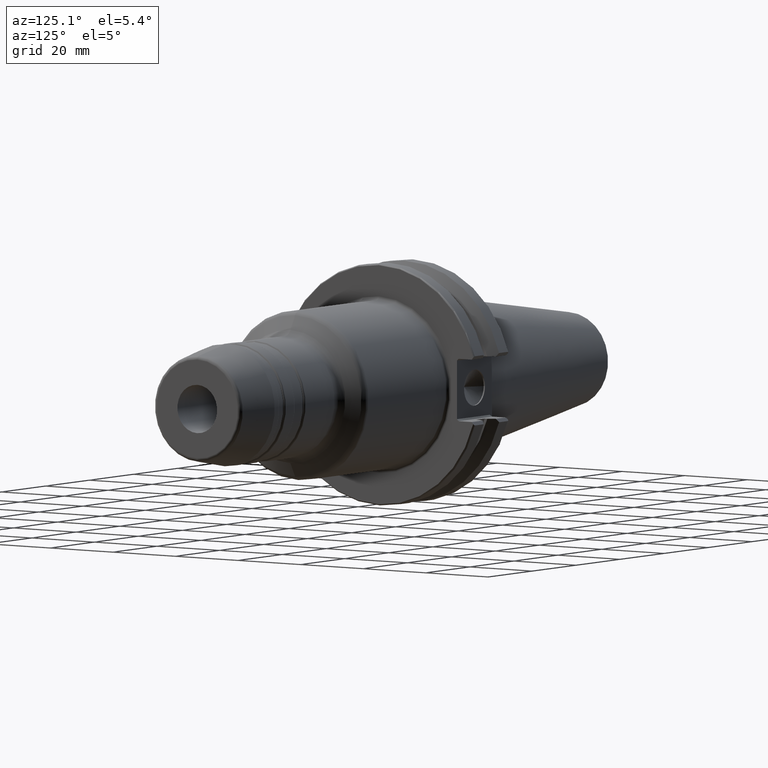
[diagram: clean part render]
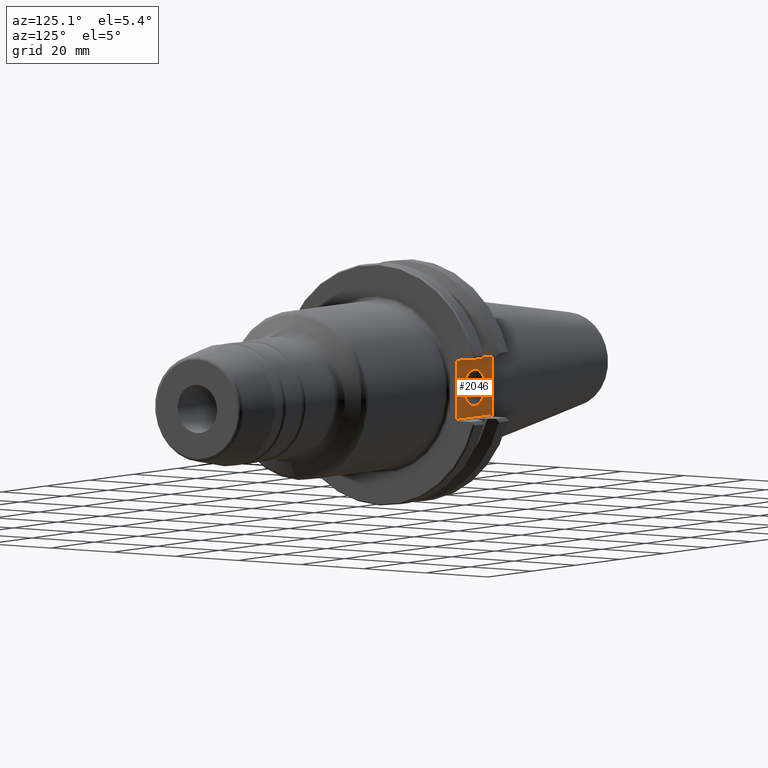
[diagram: same view with one face highlighted and labeled with its STEP entity id]
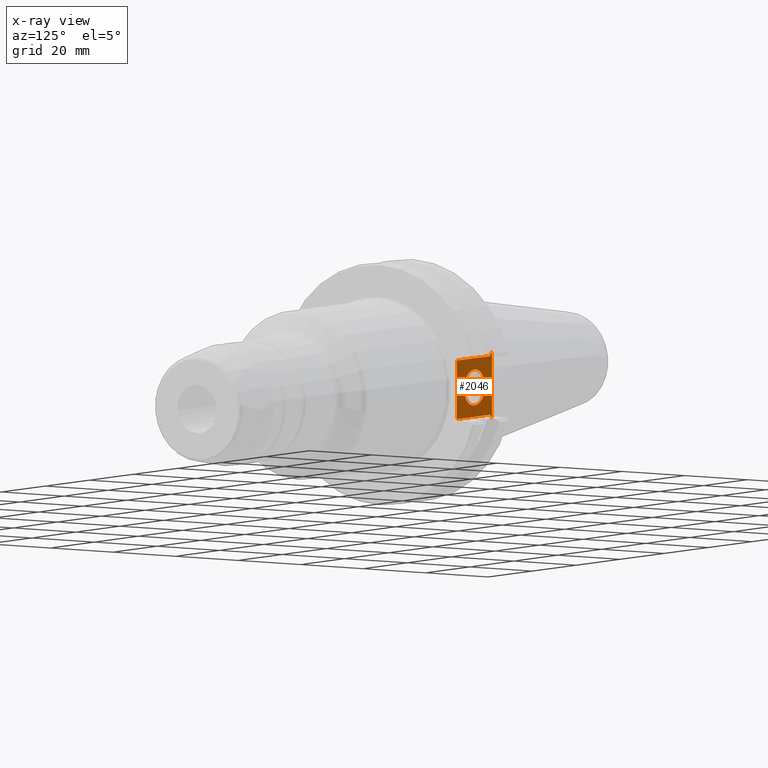
[diagram: x-ray of the same camera — body ghosted, the highlighted face saturated]
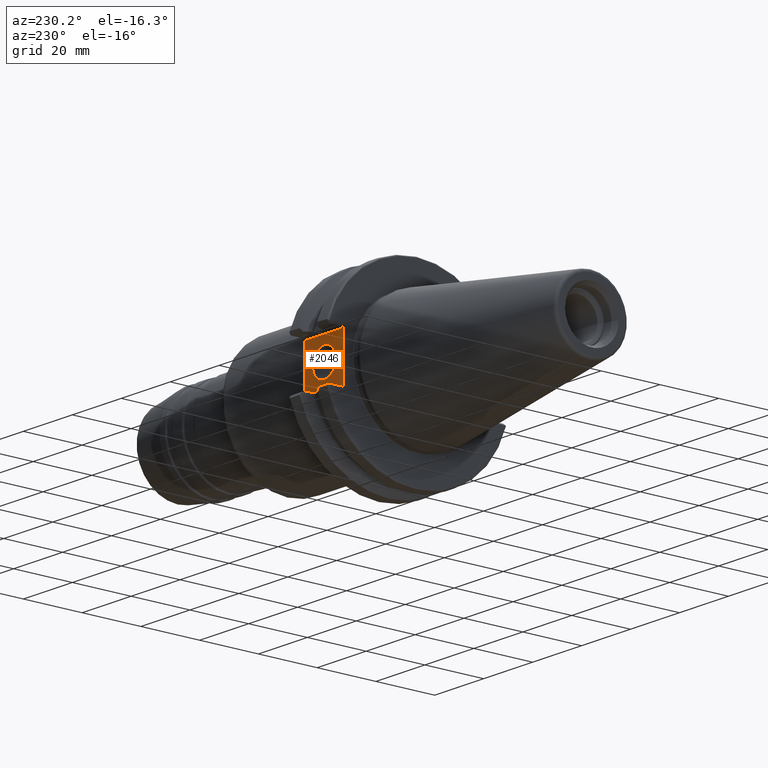
[diagram: same view with one face highlighted and labeled with its STEP entity id]
A machine part, auxiliary view. The second image highlights one B-rep face of the part: STEP entity #2046.
The next image is the same camera in x-ray: the body ghosted, the highlighted face saturated — about 0% of this face is hidden behind the body in this view.
A second angle (auxiliary view) of the same face is appended — the face is thin or edge-on in the first view.
In plain terms, the highlighted planar face has unit normal (0, 1, 0).
Its self-contained STEP definition (entity closure, byte-faithful):
#142=DIRECTION('',(7.071067811865E-1,0.E0,-7.071067811865E-1));
#143=VECTOR('',#142,1.414213562373E0);
#144=CARTESIAN_POINT('',(3.175E0,2.5E1,8.69E0));
#145=LINE('',#144,#143);
#150=CARTESIAN_POINT('',(1.11E1,2.5E1,0.E0));
#151=DIRECTION('',(0.E0,1.E0,0.E0));
#152=DIRECTION('',(1.E0,0.E0,0.E0));
#153=AXIS2_PLACEMENT_3D('',#150,#151,#152);
#155=CARTESIAN_POINT('',(1.11E1,2.5E1,0.E0));
#156=DIRECTION('',(0.E0,1.E0,0.E0));
#157=DIRECTION('',(-1.E0,0.E0,0.E0));
#158=AXIS2_PLACEMENT_3D('',#155,#156,#157);
#160=DIRECTION('',(0.E0,0.E0,-1.E0));
#161=VECTOR('',#160,1.538E1);
#162=CARTESIAN_POINT('',(1.9075E1,2.5E1,7.69E0));
#163=LINE('',#162,#161);
#164=DIRECTION('',(1.E0,0.E0,0.E0));
#165=VECTOR('',#164,1.49E1);
#166=CARTESIAN_POINT('',(4.175E0,2.5E1,7.69E0));
#167=LINE('',#166,#165);
#168=DIRECTION('',(0.E0,0.E0,-1.E0));
#169=VECTOR('',#168,1.738E1);
#170=CARTESIAN_POINT('',(3.175E0,2.5E1,8.69E0));
#171=LINE('',#170,#169);
#172=DIRECTION('',(-1.E0,0.E0,0.E0));
#173=VECTOR('',#172,1.49E1);
#174=CARTESIAN_POINT('',(1.9075E1,2.5E1,-7.69E0));
#175=LINE('',#174,#173);
#976=DIRECTION('',(-7.071067811865E-1,0.E0,-7.071067811865E-1));
#977=VECTOR('',#976,1.414213562373E0);
#978=CARTESIAN_POINT('',(4.175E0,2.5E1,-7.69E0));
#979=LINE('',#978,#977);
#1528=CARTESIAN_POINT('',(1.58625E1,2.5E1,0.E0));
#1529=CARTESIAN_POINT('',(6.3375E0,2.5E1,0.E0));
#1530=VERTEX_POINT('',#1528);
#1531=VERTEX_POINT('',#1529);
#1601=CARTESIAN_POINT('',(3.175E0,2.5E1,8.69E0));
#1603=VERTEX_POINT('',#1601);
#1608=CARTESIAN_POINT('',(3.175E0,2.5E1,-8.69E0));
#1610=VERTEX_POINT('',#1608);
#1644=CARTESIAN_POINT('',(4.175E0,2.5E1,7.69E0));
#1645=VERTEX_POINT('',#1644);
#1646=CARTESIAN_POINT('',(4.175E0,2.5E1,-7.69E0));
#1647=VERTEX_POINT('',#1646);
#1648=CARTESIAN_POINT('',(1.9075E1,2.5E1,7.69E0));
#1649=CARTESIAN_POINT('',(1.9075E1,2.5E1,-7.69E0));
#1650=VERTEX_POINT('',#1648);
#1651=VERTEX_POINT('',#1649);
#2023=CARTESIAN_POINT('',(0.E0,2.5E1,0.E0));
#2024=DIRECTION('',(0.E0,1.E0,0.E0));
#2025=DIRECTION('',(1.E0,0.E0,0.E0));
#2026=AXIS2_PLACEMENT_3D('',#2023,#2024,#2025);
#2027=PLANE('',#2026);
#2029=ORIENTED_EDGE('',*,*,#2028,.F.);
#2031=ORIENTED_EDGE('',*,*,#2030,.F.);
#2032=ORIENTED_EDGE('',*,*,#2009,.F.);
#2033=ORIENTED_EDGE('',*,*,#1995,.T.);
#2035=ORIENTED_EDGE('',*,*,#2034,.F.);
#2037=ORIENTED_EDGE('',*,*,#2036,.F.);
#2038=EDGE_LOOP('',(#2029,#2031,#2032,#2033,#2035,#2037));
#2039=FACE_OUTER_BOUND('',#2038,.F.);
#2041=ORIENTED_EDGE('',*,*,#2040,.T.);
#2043=ORIENTED_EDGE('',*,*,#2042,.T.);
#2044=EDGE_LOOP('',(#2041,#2043));
#2045=FACE_BOUND('',#2044,.F.);
#2046=ADVANCED_FACE('',(#2039,#2045),#2027,.T.);
#154=CIRCLE('',#153,4.7625E0);
#159=CIRCLE('',#158,4.7625E0);
#1995=EDGE_CURVE('',#1603,#1610,#171,.T.);
#2009=EDGE_CURVE('',#1603,#1645,#145,.T.);
#2028=EDGE_CURVE('',#1650,#1651,#163,.T.);
#2030=EDGE_CURVE('',#1645,#1650,#167,.T.);
#2034=EDGE_CURVE('',#1647,#1610,#979,.T.);
#2036=EDGE_CURVE('',#1651,#1647,#175,.T.);
#2040=EDGE_CURVE('',#1530,#1531,#154,.T.);
#2042=EDGE_CURVE('',#1531,#1530,#159,.T.);